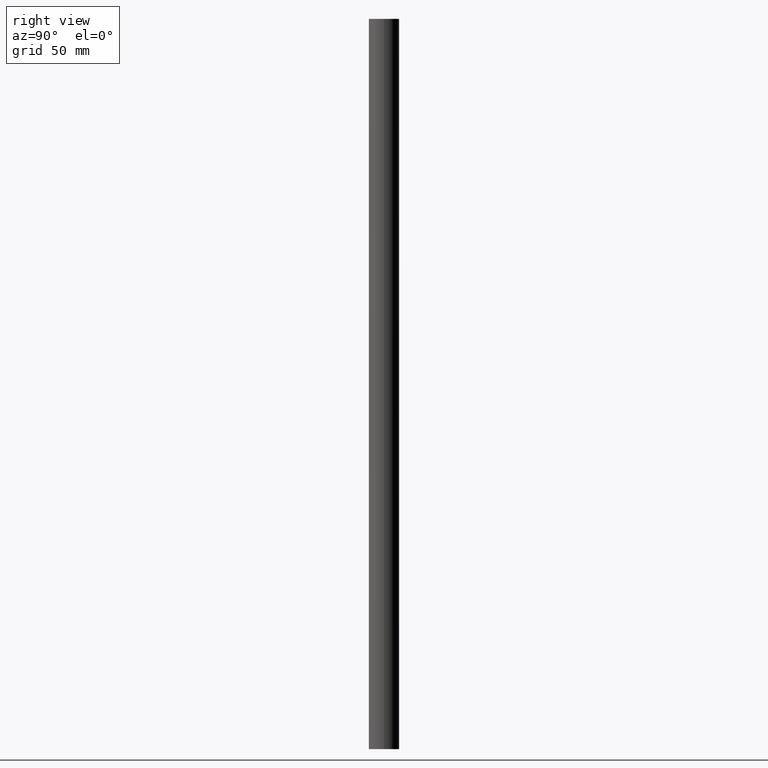
[diagram: clean part render]
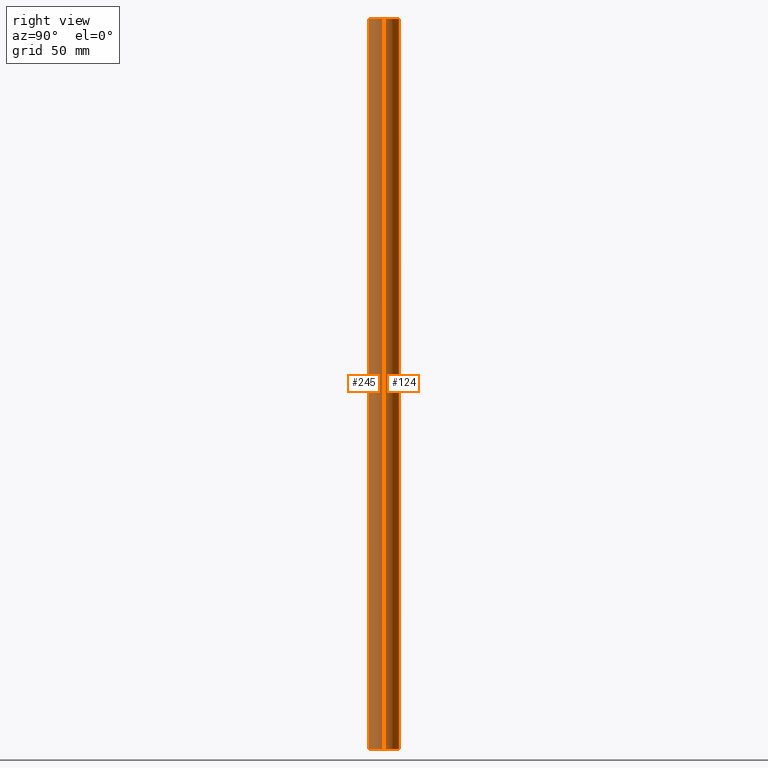
[diagram: same view with one multi-face feature highlighted, each face labeled with its STEP entity id]
A machine part, right view. The highlighted faces form ONE feature: a constant-radius fillet chain: 2 tangent blend faces with common blend radius 6.35 mm. The faces share edges in the B-rep.
Their STEP definitions:
[1] entity #245 (Cylinder):
#10 = VECTOR ( 'NONE', #46, 39.37007874015748143 ) ;
#21 = EDGE_CURVE ( 'NONE', #65, #189, #235, .T. ) ;
#24 = CARTESIAN_POINT ( 'NONE',  ( 0.000000000000000000, 1.125000000000000222, -11.99999999999999822 ) ) ;
#46 = DIRECTION ( 'NONE',  ( 0.000000000000000000, 0.000000000000000000, 1.000000000000000000 ) ) ;
#50 = CARTESIAN_POINT ( 'NONE',  ( -0.2500000000000001110, 1.125000000000000222, -11.99999999999999822 ) ) ;
#52 = DIRECTION ( 'NONE',  ( 0.000000000000000000, 0.000000000000000000, 1.000000000000000000 ) ) ;
#55 = DIRECTION ( 'NONE',  ( 0.000000000000000000, 0.000000000000000000, 1.000000000000000000 ) ) ;
#57 = DIRECTION ( 'NONE',  ( 1.000000000000000000, 0.000000000000000000, 0.000000000000000000 ) ) ;
#60 = AXIS2_PLACEMENT_3D ( 'NONE', #24, #163, #91 ) ;
#61 = EDGE_CURVE ( 'NONE', #125, #214, #260, .T. ) ;
#65 = VERTEX_POINT ( 'NONE', #255 ) ;
#77 = ORIENTED_EDGE ( 'NONE', *, *, #61, .F. ) ;
#83 = ORIENTED_EDGE ( 'NONE', *, *, #178, .F. ) ;
#85 = CIRCLE ( 'NONE', #60, 0.2500000000000001110 ) ;
#88 = CARTESIAN_POINT ( 'NONE',  ( 0.000000000000000000, 1.125000000000000222, 0.000000000000000000 ) ) ;
#91 = DIRECTION ( 'NONE',  ( 1.000000000000000000, 0.000000000000000000, 0.000000000000000000 ) ) ;
#98 = CARTESIAN_POINT ( 'NONE',  ( -0.2500000000000001110, 1.125000000000000222, 0.000000000000000000 ) ) ;
#99 = DIRECTION ( 'NONE',  ( 0.000000000000000000, 0.000000000000000000, 1.000000000000000000 ) ) ;
#112 = CARTESIAN_POINT ( 'NONE',  ( -0.2500000000000001110, 1.125000000000000222, -11.99999999999999822 ) ) ;
#123 = AXIS2_PLACEMENT_3D ( 'NONE', #88, #55, #57 ) ;
#125 = VERTEX_POINT ( 'NONE', #112 ) ;
#130 = VECTOR ( 'NONE', #52, 39.37007874015748143 ) ;
#143 = DIRECTION ( 'NONE',  ( 1.000000000000000000, 0.000000000000000000, 0.000000000000000000 ) ) ;
#144 = AXIS2_PLACEMENT_3D ( 'NONE', #165, #99, #143 ) ;
#149 = CARTESIAN_POINT ( 'NONE',  ( 0.2500000000000001110, 1.125000000000000222, -11.99999999999999822 ) ) ;
#152 = EDGE_CURVE ( 'NONE', #125, #65, #85, .T. ) ;
#157 = CARTESIAN_POINT ( 'NONE',  ( 0.2500000000000001110, 1.125000000000000222, 0.000000000000000000 ) ) ;
#163 = DIRECTION ( 'NONE',  ( 0.000000000000000000, 0.000000000000000000, 1.000000000000000000 ) ) ;
#165 = CARTESIAN_POINT ( 'NONE',  ( 0.000000000000000000, 1.125000000000000222, -11.99999999999999822 ) ) ;
#172 = ORIENTED_EDGE ( 'NONE', *, *, #21, .T. ) ;
#176 = EDGE_LOOP ( 'NONE', ( #77, #274, #172, #83 ) ) ;
#178 = EDGE_CURVE ( 'NONE', #214, #189, #242, .T. ) ;
#189 = VERTEX_POINT ( 'NONE', #157 ) ;
#214 = VERTEX_POINT ( 'NONE', #98 ) ;
#235 = LINE ( 'NONE', #149, #10 ) ;
#242 = CIRCLE ( 'NONE', #123, 0.2500000000000001110 ) ;
#243 = CYLINDRICAL_SURFACE ( 'NONE', #144, 0.2500000000000001110 ) ;
#245 = ADVANCED_FACE ( 'NONE', ( #248 ), #243, .T. ) ;
#248 = FACE_OUTER_BOUND ( 'NONE', #176, .T. ) ;
#255 = CARTESIAN_POINT ( 'NONE',  ( 0.2500000000000001110, 1.125000000000000222, -11.99999999999999822 ) ) ;
#260 = LINE ( 'NONE', #50, #130 ) ;
#274 = ORIENTED_EDGE ( 'NONE', *, *, #152, .T. ) ;
[2] entity #124 (Cylinder):
#1 = CARTESIAN_POINT ( 'NONE',  ( 0.000000000000000000, 1.125000000000000222, -11.99999999999999822 ) ) ;
#5 = CIRCLE ( 'NONE', #188, 0.2500000000000001110 ) ;
#9 = AXIS2_PLACEMENT_3D ( 'NONE', #27, #141, #70 ) ;
#10 = VECTOR ( 'NONE', #46, 39.37007874015748143 ) ;
#16 = AXIS2_PLACEMENT_3D ( 'NONE', #1, #241, #34 ) ;
#21 = EDGE_CURVE ( 'NONE', #65, #189, #235, .T. ) ;
#27 = CARTESIAN_POINT ( 'NONE',  ( 0.000000000000000000, 1.125000000000000222, 0.000000000000000000 ) ) ;
#34 = DIRECTION ( 'NONE',  ( 1.000000000000000000, 0.000000000000000000, 0.000000000000000000 ) ) ;
#46 = DIRECTION ( 'NONE',  ( 0.000000000000000000, 0.000000000000000000, 1.000000000000000000 ) ) ;
#50 = CARTESIAN_POINT ( 'NONE',  ( -0.2500000000000001110, 1.125000000000000222, -11.99999999999999822 ) ) ;
#52 = DIRECTION ( 'NONE',  ( 0.000000000000000000, 0.000000000000000000, 1.000000000000000000 ) ) ;
#61 = EDGE_CURVE ( 'NONE', #125, #214, #260, .T. ) ;
#65 = VERTEX_POINT ( 'NONE', #255 ) ;
#70 = DIRECTION ( 'NONE',  ( 1.000000000000000000, 0.000000000000000000, 0.000000000000000000 ) ) ;
#79 = EDGE_CURVE ( 'NONE', #65, #125, #5, .T. ) ;
#84 = DIRECTION ( 'NONE',  ( 1.000000000000000000, 0.000000000000000000, 0.000000000000000000 ) ) ;
#87 = ORIENTED_EDGE ( 'NONE', *, *, #61, .T. ) ;
#98 = CARTESIAN_POINT ( 'NONE',  ( -0.2500000000000001110, 1.125000000000000222, 0.000000000000000000 ) ) ;
#110 = ORIENTED_EDGE ( 'NONE', *, *, #79, .T. ) ;
#112 = CARTESIAN_POINT ( 'NONE',  ( -0.2500000000000001110, 1.125000000000000222, -11.99999999999999822 ) ) ;
#119 = CARTESIAN_POINT ( 'NONE',  ( 0.000000000000000000, 1.125000000000000222, -11.99999999999999822 ) ) ;
#124 = ADVANCED_FACE ( 'NONE', ( #151 ), #147, .T. ) ;
#125 = VERTEX_POINT ( 'NONE', #112 ) ;
#130 = VECTOR ( 'NONE', #52, 39.37007874015748143 ) ;
#141 = DIRECTION ( 'NONE',  ( 0.000000000000000000, 0.000000000000000000, 1.000000000000000000 ) ) ;
#147 = CYLINDRICAL_SURFACE ( 'NONE', #16, 0.2500000000000001110 ) ;
#149 = CARTESIAN_POINT ( 'NONE',  ( 0.2500000000000001110, 1.125000000000000222, -11.99999999999999822 ) ) ;
#151 = FACE_OUTER_BOUND ( 'NONE', #174, .T. ) ;
#157 = CARTESIAN_POINT ( 'NONE',  ( 0.2500000000000001110, 1.125000000000000222, 0.000000000000000000 ) ) ;
#174 = EDGE_LOOP ( 'NONE', ( #110, #87, #252, #193 ) ) ;
#188 = AXIS2_PLACEMENT_3D ( 'NONE', #119, #199, #84 ) ;
#189 = VERTEX_POINT ( 'NONE', #157 ) ;
#193 = ORIENTED_EDGE ( 'NONE', *, *, #21, .F. ) ;
#199 = DIRECTION ( 'NONE',  ( 0.000000000000000000, 0.000000000000000000, 1.000000000000000000 ) ) ;
#201 = EDGE_CURVE ( 'NONE', #189, #214, #211, .T. ) ;
#211 = CIRCLE ( 'NONE', #9, 0.2500000000000001110 ) ;
#214 = VERTEX_POINT ( 'NONE', #98 ) ;
#235 = LINE ( 'NONE', #149, #10 ) ;
#241 = DIRECTION ( 'NONE',  ( 0.000000000000000000, 0.000000000000000000, 1.000000000000000000 ) ) ;
#252 = ORIENTED_EDGE ( 'NONE', *, *, #201, .F. ) ;
#255 = CARTESIAN_POINT ( 'NONE',  ( 0.2500000000000001110, 1.125000000000000222, -11.99999999999999822 ) ) ;
#260 = LINE ( 'NONE', #50, #130 ) ;